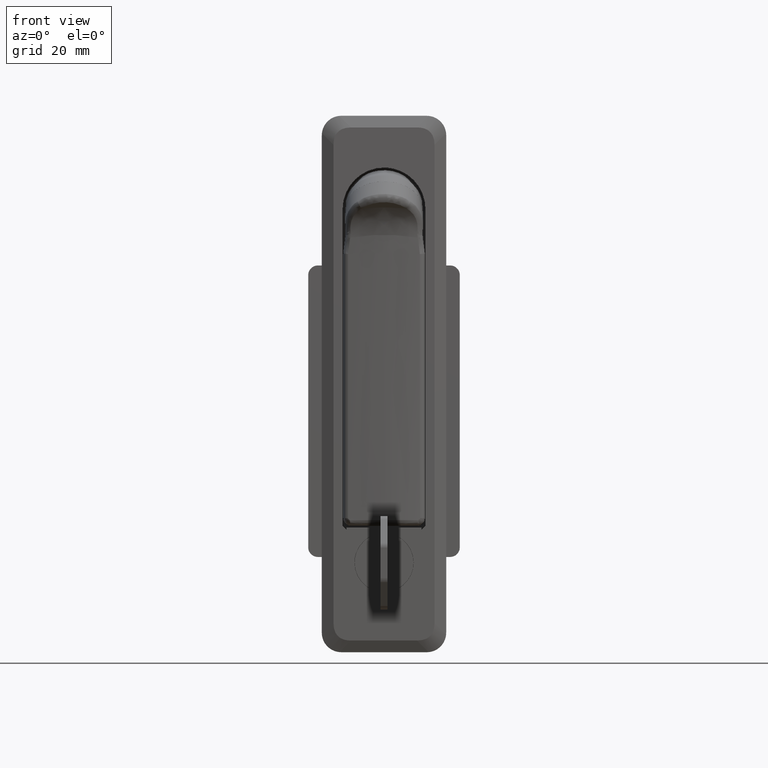
[diagram: clean part render]
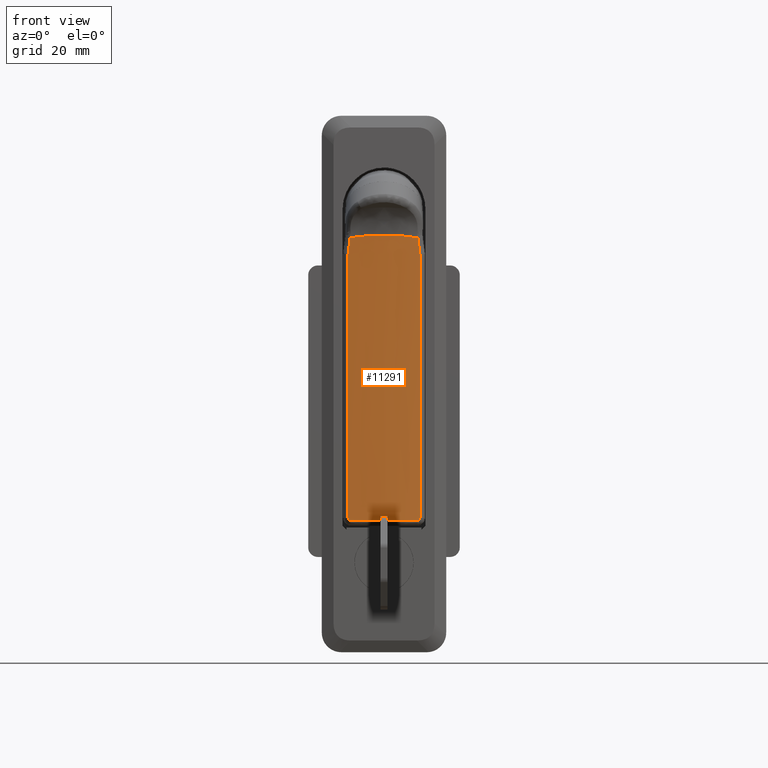
[diagram: same view with one face highlighted and labeled with its STEP entity id]
A machine part, front view. The second image highlights one B-rep face of the part: STEP entity #11291.
In plain terms, the highlighted face is a freeform B-spline surface patch.
Its self-contained STEP definition (entity closure, byte-faithful):
#8309=CARTESIAN_POINT('',(-0.593287196272527,9.230769230769191,-79.499797333296385));
#8310=VERTEX_POINT('',#8309);
#8337=CARTESIAN_POINT('',(-0.670864539819239,8.717948717948669,-79.999797333296385));
#8338=VERTEX_POINT('',#8337);
#8349=CARTESIAN_POINT('',(-0.593287196272520,9.230769230769191,-79.499797333296385));
#8350=CARTESIAN_POINT('',(-0.593287196272520,9.230769230769189,-79.533443926202096));
#8351=CARTESIAN_POINT('',(-0.593824289165084,9.227321544824644,-79.566479465484122));
#8352=CARTESIAN_POINT('',(-0.595395049034603,9.217221747952639,-79.615159379093669));
#8353=CARTESIAN_POINT('',(-0.596047100512712,9.213027370892773,-79.631239318154869));
#8354=CARTESIAN_POINT('',(-0.597612461997759,9.202948178609187,-79.663099646056651));
#8355=CARTESIAN_POINT('',(-0.598528233251857,9.197047397824948,-79.678884863008406));
#8356=CARTESIAN_POINT('',(-0.601600149239426,9.177228991317932,-79.724686185330214));
#8357=CARTESIAN_POINT('',(-0.604094566932641,9.161108413612308,-79.753548243355041));
#8358=CARTESIAN_POINT('',(-0.609943642256976,9.123169066111039,-79.807997393731895));
#8359=CARTESIAN_POINT('',(-0.613314971917447,9.101239427799726,-79.833567112454332));
#8360=CARTESIAN_POINT('',(-0.620605796429309,9.053603195493432,-79.879216782380539));
#8361=CARTESIAN_POINT('',(-0.624556211541727,9.027697151018447,-79.899625018430939));
#8362=CARTESIAN_POINT('',(-0.633058290788265,8.971655845646254,-79.935549394884376));
#8363=CARTESIAN_POINT('',(-0.637508954684916,8.942184459536303,-79.950612235691523));
#8364=CARTESIAN_POINT('',(-0.646677806205394,8.881137571213294,-79.974894555783010));
#8365=CARTESIAN_POINT('',(-0.651447635714418,8.849216784739275,-79.984220410915398));
#8366=CARTESIAN_POINT('',(-0.661120003370704,8.784107985001834,-79.996672866951599));
#8367=CARTESIAN_POINT('',(-0.665980695385446,8.751204357139343,-79.999797333296357));
#8368=CARTESIAN_POINT('',(-0.670864539819236,8.717948717948669,-79.999797333296385));
#8369=B_SPLINE_CURVE_WITH_KNOTS('',3,(#8349,#8350,#8351,#8352,#8353,#8354,#8355,#8356,#8357,#8358,#8359,#8360,#8361,#8362,#8363,#8364,#8365,#8366,#8367,#8368),.UNSPECIFIED.,.F.,.U.,(4,2,2,2,2,2,2,2,2,4),(0.0,0.125000000000043,0.187500000000039,0.250000000000035,0.375000000000029,0.500000000000023,0.625000000000017,0.750000000000012,0.875000000000006,1.0),.UNSPECIFIED.);
#8370=EDGE_CURVE('',#8310,#8338,#8369,.T.);
#8394=CARTESIAN_POINT('',(-0.670864539819239,-8.717948717948669,-79.999797333296385));
#8395=VERTEX_POINT('',#8394);
#8407=CARTESIAN_POINT('',(-0.670864539819239,8.717948717948669,-79.999797333296385));
#8408=CARTESIAN_POINT('',(-1.108012554850585,5.742442924498828,-79.999797333296414));
#8409=CARTESIAN_POINT('',(-1.520450271841517,-0.092103118159534,-79.999797333296300));
#8410=CARTESIAN_POINT('',(-1.081498204934079,-5.922767603829385,-79.999797333296314));
#8411=CARTESIAN_POINT('',(-0.670864539819239,-8.717948717948669,-79.999797333296385));
#8412=B_SPLINE_CURVE_WITH_KNOTS('',3,(#8407,#8408,#8409,#8410,#8411),.UNSPECIFIED.,.F.,.U.,(4,1,4),(2.317304E-009,9.022320941125066,17.497853507731492),.UNSPECIFIED.);
#8413=EDGE_CURVE('',#8338,#8395,#8412,.T.);
#8441=CARTESIAN_POINT('',(-0.593287196272527,9.230769230769191,-11.621982736734919));
#8442=VERTEX_POINT('',#8441);
#8462=CARTESIAN_POINT('',(-0.593287196272527,9.230769230769191,-11.621982736734919));
#8463=CARTESIAN_POINT('',(-0.593287196272527,9.230769230769191,-79.499797333296385));
#8464=QUASI_UNIFORM_CURVE('',1,(#8462,#8463),.UNSPECIFIED.,.F.,.U.);
#8465=EDGE_CURVE('',#8442,#8310,#8464,.T.);
#8570=CARTESIAN_POINT('',(-0.593287196272524,-9.230769230769180,-79.499797333296385));
#8571=VERTEX_POINT('',#8570);
#8583=CARTESIAN_POINT('',(-0.670864539819239,-8.717948717948669,-79.999797333296385));
#8584=CARTESIAN_POINT('',(-0.665980144494525,-8.751208108329632,-79.999797333296414));
#8585=CARTESIAN_POINT('',(-0.661143082661120,-8.783950872228644,-79.996672440863293));
#8586=CARTESIAN_POINT('',(-0.651563149818038,-8.848440941503393,-79.984398832801773));
#8587=CARTESIAN_POINT('',(-0.646775480897858,-8.880485732467736,-79.975122260247645));
#8588=CARTESIAN_POINT('',(-0.637539241158125,-8.941984302598456,-79.950722990857386));
#8589=CARTESIAN_POINT('',(-0.633119812092454,-8.971248250747573,-79.935751181536816));
#8590=CARTESIAN_POINT('',(-0.624692084304021,-9.026803578297207,-79.900255946330816));
#8591=CARTESIAN_POINT('',(-0.620653968313786,-9.053287741934458,-79.879486027101748));
#8592=CARTESIAN_POINT('',(-0.613347313188240,-9.101028822854357,-79.833801625797349));
#8593=CARTESIAN_POINT('',(-0.610040742130485,-9.122538080131307,-79.808792533000045));
#8594=CARTESIAN_POINT('',(-0.605632074616259,-9.151136104060617,-79.767913051666923));
#8595=CARTESIAN_POINT('',(-0.604250199207733,-9.160084586490267,-79.753651234919403));
#8596=CARTESIAN_POINT('',(-0.601737734801617,-9.176333950626267,-79.724589253275965));
#8597=CARTESIAN_POINT('',(-0.600599785083706,-9.183682690760108,-79.709733557983370));
#8598=CARTESIAN_POINT('',(-0.597538712134586,-9.203431530072750,-79.664204935959518));
#8599=CARTESIAN_POINT('',(-0.595962080415191,-9.213575696093361,-79.632497429178656));
#8600=CARTESIAN_POINT('',(-0.593824544872079,-9.227320006807236,-79.566717616400510));
#8601=CARTESIAN_POINT('',(-0.593287196272525,-9.230769230769182,-79.533448534454294));
#8602=CARTESIAN_POINT('',(-0.593287196272525,-9.230769230769180,-79.499797333296385));
#8603=B_SPLINE_CURVE_WITH_KNOTS('',3,(#8583,#8584,#8585,#8586,#8587,#8588,#8589,#8590,#8591,#8592,#8593,#8594,#8595,#8596,#8597,#8598,#8599,#8600,#8601,#8602),.UNSPECIFIED.,.F.,.U.,(4,2,2,2,2,2,2,2,2,4),(0.0,0.124999999999986,0.249999999999971,0.374999999999956,0.499999999999942,0.624999999999928,0.687499999999940,0.749999999999952,0.874999999999976,1.0),.UNSPECIFIED.);
#8604=EDGE_CURVE('',#8395,#8571,#8603,.T.);
#8641=CARTESIAN_POINT('',(-0.593880876059456,9.226955446356101,-11.561117204549660));
#8642=VERTEX_POINT('',#8641);
#8663=CARTESIAN_POINT('',(-0.593880876059456,9.226955446356101,-11.561117204549660));
#8664=CARTESIAN_POINT('',(-0.593287426954586,9.230768286728790,-11.591427652377190));
#8665=CARTESIAN_POINT('',(-0.593287196272527,9.230769230769191,-11.621982736734919));
#8666=B_SPLINE_CURVE_WITH_KNOTS('',2,(#8663,#8664,#8665),.UNSPECIFIED.,.F.,.U.,(3,3),(1.276756E-015,0.061048978907316),.UNSPECIFIED.);
#8667=EDGE_CURVE('',#8642,#8442,#8666,.T.);
#8688=CARTESIAN_POINT('',(-0.593287196272527,-9.230769230769170,-11.621982736734340));
#8689=VERTEX_POINT('',#8688);
#8701=CARTESIAN_POINT('',(-0.593287196272524,-9.230769230769180,-79.499797333296385));
#8702=CARTESIAN_POINT('',(-0.593287196272527,-9.230769230769170,-11.621982736734340));
#8703=QUASI_UNIFORM_CURVE('',1,(#8701,#8702),.UNSPECIFIED.,.F.,.U.);
#8704=EDGE_CURVE('',#8571,#8689,#8703,.T.);
#8735=CARTESIAN_POINT('',(-0.673580437330200,8.699435233337031,-7.367387496955450));
#8736=VERTEX_POINT('',#8735);
#8763=CARTESIAN_POINT('',(-0.673580437330200,8.699435233337031,-7.367387496955450));
#8764=CARTESIAN_POINT('',(-0.634903316888660,8.963372509366565,-9.465660829633563));
#8765=CARTESIAN_POINT('',(-0.593880876059456,9.226955446356101,-11.561117204549660));
#8773=(BOUNDED_CURVE()B_SPLINE_CURVE(2,(#8763,#8764,#8765),.UNSPECIFIED.,.F.,.U.)CURVE()GEOMETRIC_REPRESENTATION_ITEM()QUASI_UNIFORM_CURVE()RATIONAL_B_SPLINE_CURVE((1.0,0.999990116983471,1.0))REPRESENTATION_ITEM(''));
#8774=EDGE_CURVE('',#8736,#8642,#8773,.T.);
#8801=CARTESIAN_POINT('',(-0.593880876059459,-9.226955446356081,-11.561117204549101));
#8802=VERTEX_POINT('',#8801);
#8813=CARTESIAN_POINT('',(-0.593287196272527,-9.230769230769170,-11.621982736734340));
#8814=CARTESIAN_POINT('',(-0.593287328174034,-9.230768652364905,-11.591427628502650));
#8815=CARTESIAN_POINT('',(-0.593880876059459,-9.226955446356081,-11.561117204549101));
#8816=B_SPLINE_CURVE_WITH_KNOTS('',2,(#8813,#8814,#8815),.UNSPECIFIED.,.F.,.U.,(3,3),(8.014422E-016,0.061049002771564),.UNSPECIFIED.);
#8817=EDGE_CURVE('',#8689,#8802,#8816,.T.);
#8909=CARTESIAN_POINT('',(-0.673580437330186,-8.699435233337180,-7.367387496955471));
#8910=VERTEX_POINT('',#8909);
#8921=CARTESIAN_POINT('',(-0.593880876059431,-9.226955446356083,-11.561117204549079));
#8922=CARTESIAN_POINT('',(-0.634903316888584,-8.963372509367099,-9.465660829636901));
#8923=CARTESIAN_POINT('',(-0.673580437330186,-8.699435233337180,-7.367387496955471));
#8931=(BOUNDED_CURVE()B_SPLINE_CURVE(2,(#8921,#8922,#8923),.UNSPECIFIED.,.F.,.U.)CURVE()GEOMETRIC_REPRESENTATION_ITEM()QUASI_UNIFORM_CURVE()RATIONAL_B_SPLINE_CURVE((1.0,0.999990116966999,1.0))REPRESENTATION_ITEM(''));
#8932=EDGE_CURVE('',#8802,#8910,#8931,.T.);
#9477=CARTESIAN_POINT('',(-0.673580437330193,-8.699435233337191,-7.367387496955452));
#9478=CARTESIAN_POINT('',(-1.948387502684834,-6.245005E-014,-5.880112587375044));
#9479=CARTESIAN_POINT('',(-0.673580437330200,8.699435233337031,-7.367387496955450));
#9487=(BOUNDED_CURVE()B_SPLINE_CURVE(2,(#9477,#9478,#9479),.UNSPECIFIED.,.F.,.U.)CURVE()GEOMETRIC_REPRESENTATION_ITEM()QUASI_UNIFORM_CURVE()RATIONAL_B_SPLINE_CURVE((1.0,0.989433034427772,1.0))REPRESENTATION_ITEM(''));
#9488=EDGE_CURVE('',#8910,#8736,#9487,.T.);
#11265=CARTESIAN_POINT('',(-0.444814401992882,10.138524556474284,-4.793397471239135));
#11266=CARTESIAN_POINT('',(-0.444814401992882,10.138524556474284,-81.879957329847798));
#11267=CARTESIAN_POINT('',(-2.183276657161329,-0.001788994260023,-4.793397471239135));
#11268=CARTESIAN_POINT('',(-2.183276657161329,-0.001788994260023,-81.879957329847812));
#11269=CARTESIAN_POINT('',(-0.444218404647681,-10.142000348774060,-4.793397471239135));
#11270=CARTESIAN_POINT('',(-0.444218404647681,-10.142000348774060,-81.879957329847812));
#11278=(BOUNDED_SURFACE()B_SPLINE_SURFACE(1,2,((#11265,#11267,#11269),(#11266,#11268,#11270)),.UNSPECIFIED.,.F.,.F.,.U.)B_SPLINE_SURFACE_WITH_KNOTS((2,2),(3,3),(0.0,77.086559858608680),(0.0,20.427425612610890),.UNSPECIFIED.)GEOMETRIC_REPRESENTATION_ITEM()RATIONAL_B_SPLINE_SURFACE(((0.998375636264553,0.982045415023698,0.994384386478732),(0.998375636264553,0.982045415023698,0.994384386478732)))REPRESENTATION_ITEM('')SURFACE());
#11279=ORIENTED_EDGE('',*,*,#8817,.T.);
#11280=ORIENTED_EDGE('',*,*,#8932,.T.);
#11281=ORIENTED_EDGE('',*,*,#9488,.T.);
#11282=ORIENTED_EDGE('',*,*,#8774,.T.);
#11283=ORIENTED_EDGE('',*,*,#8667,.T.);
#11284=ORIENTED_EDGE('',*,*,#8465,.T.);
#11285=ORIENTED_EDGE('',*,*,#8370,.T.);
#11286=ORIENTED_EDGE('',*,*,#8413,.T.);
#11287=ORIENTED_EDGE('',*,*,#8604,.T.);
#11288=ORIENTED_EDGE('',*,*,#8704,.T.);
#11289=EDGE_LOOP('',(#11279,#11280,#11281,#11282,#11283,#11284,#11285,#11286,#11287,#11288));
#11290=FACE_OUTER_BOUND('',#11289,.T.);
#11291=ADVANCED_FACE('',(#11290),#11278,.T.);